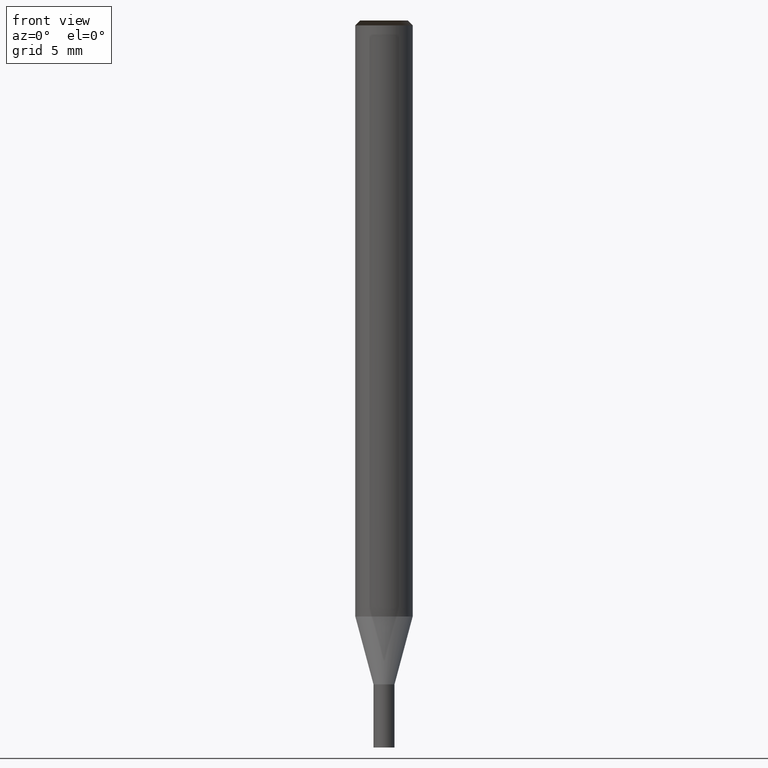
[diagram: clean part render]
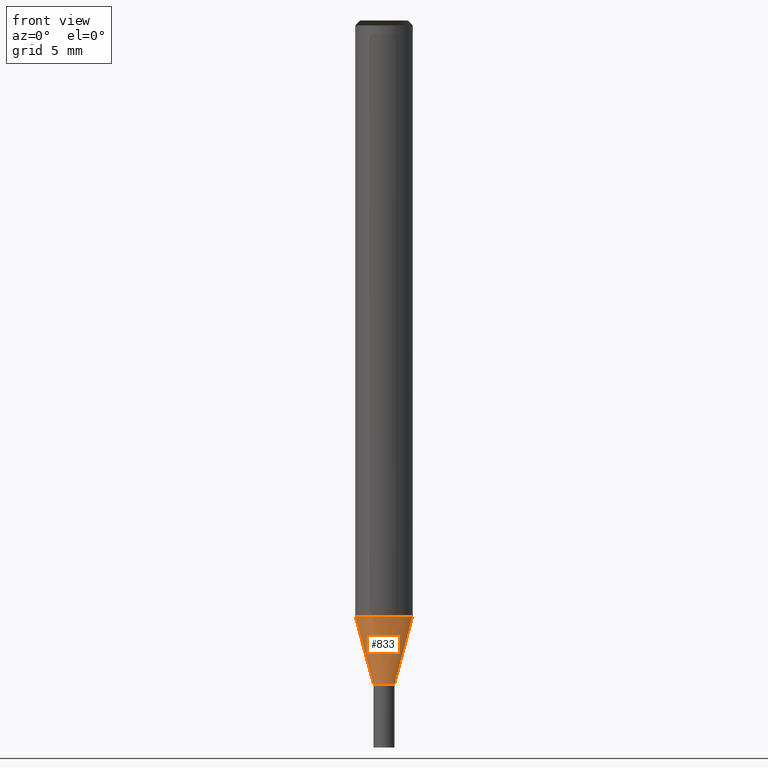
[diagram: same view with one face highlighted and labeled with its STEP entity id]
A machine part, front view. The second image highlights one B-rep face of the part: STEP entity #833.
In plain terms, the highlighted face is a freeform B-spline surface patch.
Its self-contained STEP definition (entity closure, byte-faithful):
#526=CARTESIAN_POINT('',(0.55,0.0,-4.0));
#530=CARTESIAN_POINT('',(-0.55,0.0,-4.0));
#535=CARTESIAN_POINT('',(-0.55,-0.55,-4.0));
#536=CARTESIAN_POINT('',(0.0,-0.55,-4.0));
#537=CARTESIAN_POINT('',(0.55,-0.55,-4.0));
#538=CARTESIAN_POINT('',(1.5,0.0,-0.45455173281));
#542=CARTESIAN_POINT('',(-1.5,0.0,-0.45455173281));
#559=CARTESIAN_POINT('',(-1.5,-1.5,-0.45455173281));
#560=CARTESIAN_POINT('',(0.0,-1.5,-0.45455173281));
#561=CARTESIAN_POINT('',(1.5,-1.5,-0.45455173281));
#814=(
BOUNDED_SURFACE()
B_SPLINE_SURFACE(1,2,(
(#530,#535,#536,#537,#526),
(#542,#559,#560,#561,#538)
), .UNSPECIFIED.,.F.,.F.,.F.)
B_SPLINE_SURFACE_WITH_KNOTS((2,2),(3,2,3),(
0.0,1.0),(
0.0,0.5,1.0), .UNSPECIFIED.)
GEOMETRIC_REPRESENTATION_ITEM()
RATIONAL_B_SPLINE_SURFACE(((1.0,0.707106781187,1.0,0.707106781187,1.0),
(1.0,0.707106781187,1.0,0.707106781187,1.0)
))
REPRESENTATION_ITEM('')
SURFACE()
);
#815=(
BOUNDED_CURVE()
B_SPLINE_CURVE(2,(#526,#537,#536,#535,#530),.UNSPECIFIED.,.F.,.F.)
B_SPLINE_CURVE_WITH_KNOTS((3,2,3),
(0.0,0.5,1.0),.UNSPECIFIED.)
CURVE()
GEOMETRIC_REPRESENTATION_ITEM()
RATIONAL_B_SPLINE_CURVE((1.0,0.707106781187,1.0,0.707106781187,1.0))
REPRESENTATION_ITEM('')
);
#816=(
BOUNDED_CURVE()
B_SPLINE_CURVE(1,(#530,#542),.UNSPECIFIED.,.F.,.F.)
B_SPLINE_CURVE_WITH_KNOTS((2,2),
(0.0,1.0),.UNSPECIFIED.)
CURVE()
GEOMETRIC_REPRESENTATION_ITEM()
RATIONAL_B_SPLINE_CURVE((1.0,1.0))
REPRESENTATION_ITEM('')
);
#817=(
BOUNDED_CURVE()
B_SPLINE_CURVE(2,(#542,#559,#560,#561,#538),.UNSPECIFIED.,.F.,.F.)
B_SPLINE_CURVE_WITH_KNOTS((3,2,3),
(0.0,0.5,1.0),.UNSPECIFIED.)
CURVE()
GEOMETRIC_REPRESENTATION_ITEM()
RATIONAL_B_SPLINE_CURVE((1.0,0.707106781187,1.0,0.707106781187,1.0))
REPRESENTATION_ITEM('')
);
#818=(
BOUNDED_CURVE()
B_SPLINE_CURVE(1,(#538,#526),.UNSPECIFIED.,.F.,.F.)
B_SPLINE_CURVE_WITH_KNOTS((2,2),
(0.0,1.0),.UNSPECIFIED.)
CURVE()
GEOMETRIC_REPRESENTATION_ITEM()
RATIONAL_B_SPLINE_CURVE((1.0,1.0))
REPRESENTATION_ITEM('')
);
#819=VERTEX_POINT('',#526);
#820=VERTEX_POINT('',#530);
#821=VERTEX_POINT('',#538);
#822=VERTEX_POINT('',#542);
#823=EDGE_CURVE('',#819,#820,#815,.T.);
#824=EDGE_CURVE('',#820,#822,#816,.T.);
#825=EDGE_CURVE('',#822,#821,#817,.T.);
#826=EDGE_CURVE('',#821,#819,#818,.T.);
#827=ORIENTED_EDGE('',*,*,#823,.T.);
#828=ORIENTED_EDGE('',*,*,#824,.T.);
#829=ORIENTED_EDGE('',*,*,#825,.T.);
#830=ORIENTED_EDGE('',*,*,#826,.T.);
#831=EDGE_LOOP('',(#827,#828,#829,#830));
#832=FACE_OUTER_BOUND('',#831,.T.);
#833=ADVANCED_FACE('',(#832),#814,.T.);